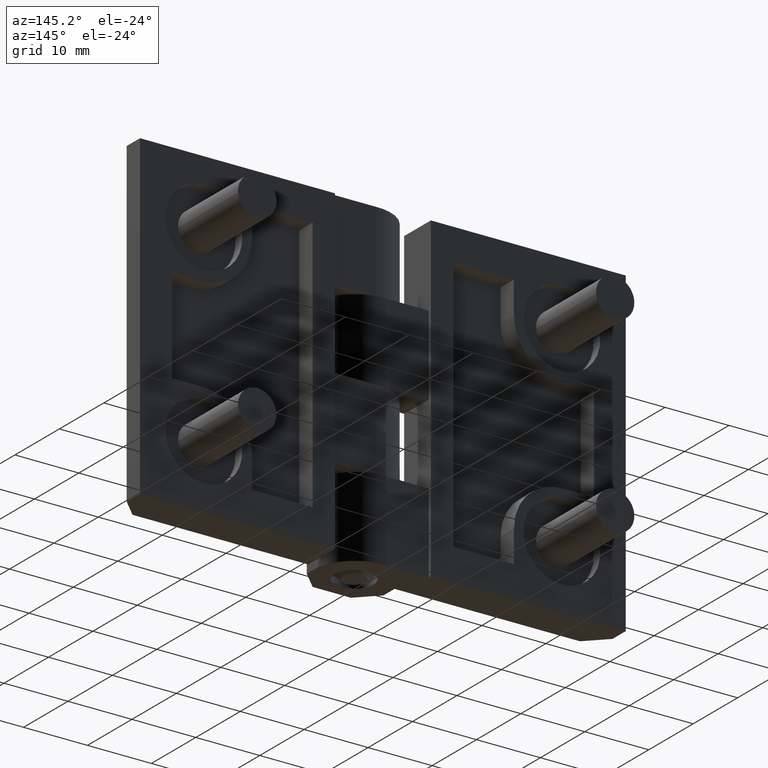
[diagram: clean part render]
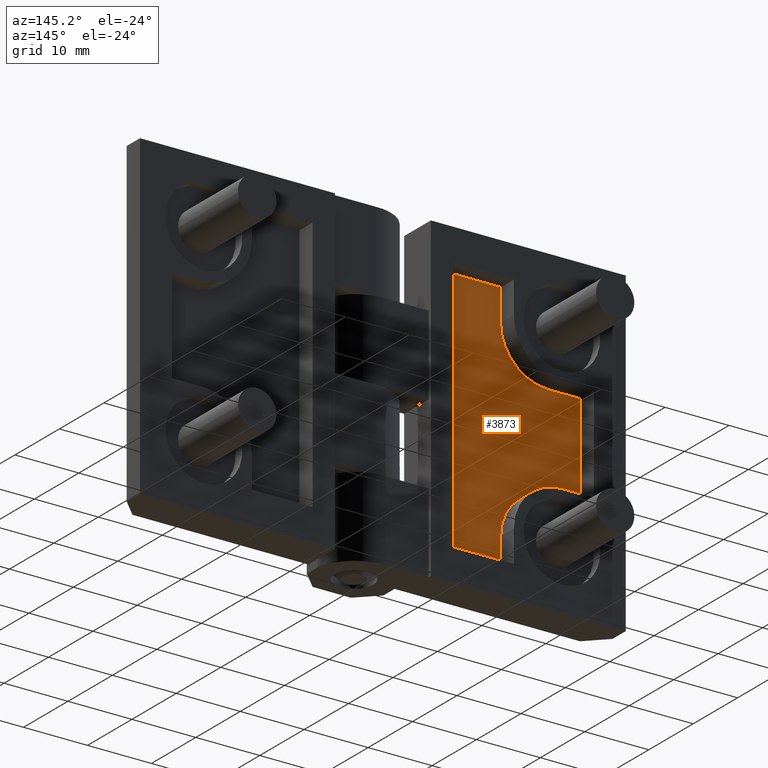
[diagram: same view with one face highlighted and labeled with its STEP entity id]
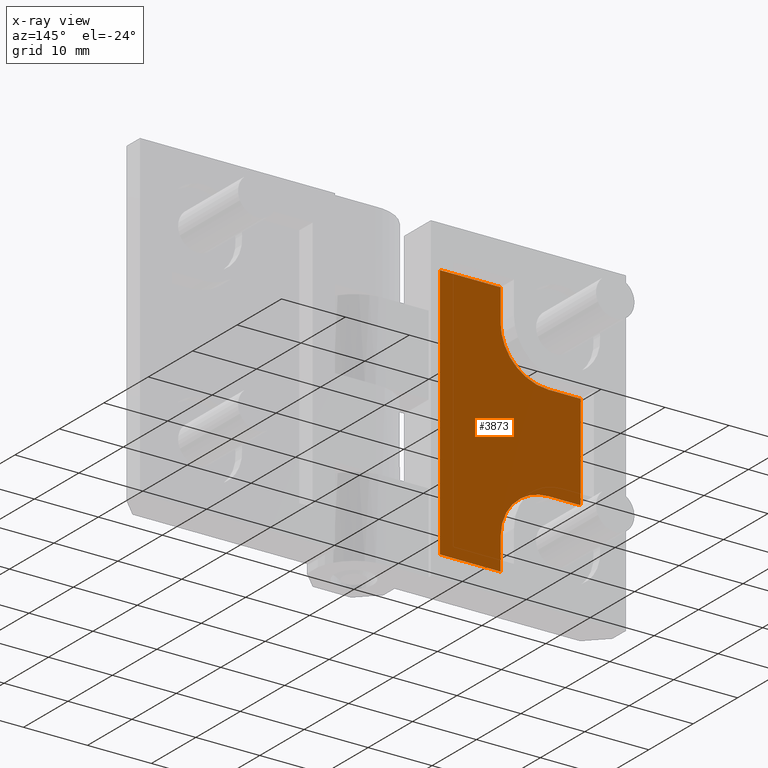
[diagram: x-ray of the same camera — body ghosted, the highlighted face saturated]
A machine part, auxiliary view. The second image highlights one B-rep face of the part: STEP entity #3873.
The next image is the same camera in x-ray: the body ghosted, the highlighted face saturated — about 0% of this face is hidden behind the body in this view.
In plain terms, the highlighted face is a freeform B-spline surface patch.
Its self-contained STEP definition (entity closure, byte-faithful):
#3780=CARTESIAN_POINT('',(-34.098899957359727,3.500000000000000,46.997999922472239));
#3781=CARTESIAN_POINT('',(-9.901099452554286,3.500000000000000,46.997999922472239));
#3782=CARTESIAN_POINT('',(-34.098899957359727,3.500000000000000,3.001999004644155));
#3783=CARTESIAN_POINT('',(-9.901099452554286,3.500000000000000,3.001999004644155));
#3784=B_SPLINE_SURFACE_WITH_KNOTS('',1,1,((#3780,#3782),(#3781,#3783)),.UNSPECIFIED.,.F.,.F.,.U.,(2,2),(2,2),(0.0,24.197800504805439),(0.0,43.996000917828077),.UNSPECIFIED.);
#3785=CARTESIAN_POINT('',(-20.500000000000000,3.500000000000060,10.000000000059980));
#3786=VERTEX_POINT('',#3785);
#3787=CARTESIAN_POINT('',(-28.0,3.500000000000060,17.500000000059998));
#3788=VERTEX_POINT('',#3787);
#3789=CARTESIAN_POINT('',(-20.500000000000000,3.500000000000060,10.000000000059980));
#3790=CARTESIAN_POINT('',(-20.499999999999996,3.500000000000060,17.500000000059977));
#3791=CARTESIAN_POINT('',(-28.0,3.500000000000060,17.500000000059980));
#3799=(BOUNDED_CURVE()B_SPLINE_CURVE(2,(#3789,#3790,#3791),.UNSPECIFIED.,.F.,.U.)CURVE()GEOMETRIC_REPRESENTATION_ITEM()QUASI_UNIFORM_CURVE()RATIONAL_B_SPLINE_CURVE((1.0,0.707106781186547,1.0))REPRESENTATION_ITEM(''));
#3800=EDGE_CURVE('',#3786,#3788,#3799,.T.);
#3801=ORIENTED_EDGE('',*,*,#3800,.T.);
#3802=CARTESIAN_POINT('',(-33.0,3.500000000000060,17.500000000059998));
#3803=VERTEX_POINT('',#3802);
#3804=CARTESIAN_POINT('',(-33.0,3.500000000000060,17.500000000059998));
#3805=CARTESIAN_POINT('',(-28.0,3.500000000000060,17.500000000059998));
#3806=QUASI_UNIFORM_CURVE('',1,(#3804,#3805),.UNSPECIFIED.,.F.,.U.);
#3807=EDGE_CURVE('',#3803,#3788,#3806,.T.);
#3808=ORIENTED_EDGE('',*,*,#3807,.F.);
#3809=CARTESIAN_POINT('',(-33.0,3.500000000000060,32.499999999940002));
#3810=VERTEX_POINT('',#3809);
#3811=CARTESIAN_POINT('',(-33.0,3.500000000000060,32.499999999940002));
#3812=CARTESIAN_POINT('',(-33.0,3.500000000000060,17.500000000059998));
#3813=QUASI_UNIFORM_CURVE('',1,(#3811,#3812),.UNSPECIFIED.,.F.,.U.);
#3814=EDGE_CURVE('',#3810,#3803,#3813,.T.);
#3815=ORIENTED_EDGE('',*,*,#3814,.F.);
#3816=CARTESIAN_POINT('',(-28.0,3.500000000000060,32.499999999940002));
#3817=VERTEX_POINT('',#3816);
#3818=CARTESIAN_POINT('',(-28.0,3.500000000000060,32.499999999940002));
#3819=CARTESIAN_POINT('',(-33.0,3.500000000000060,32.499999999940002));
#3820=QUASI_UNIFORM_CURVE('',1,(#3818,#3819),.UNSPECIFIED.,.F.,.U.);
#3821=EDGE_CURVE('',#3817,#3810,#3820,.T.);
#3822=ORIENTED_EDGE('',*,*,#3821,.F.);
#3823=CARTESIAN_POINT('',(-20.500000000000000,3.500000000000060,39.999999999940002));
#3824=VERTEX_POINT('',#3823);
#3825=CARTESIAN_POINT('',(-28.0,3.500000000000060,32.499999999940002));
#3826=CARTESIAN_POINT('',(-20.499999999999996,3.500000000000060,32.499999999940002));
#3827=CARTESIAN_POINT('',(-20.500000000000000,3.500000000000060,39.999999999940002));
#3835=(BOUNDED_CURVE()B_SPLINE_CURVE(2,(#3825,#3826,#3827),.UNSPECIFIED.,.F.,.U.)CURVE()GEOMETRIC_REPRESENTATION_ITEM()QUASI_UNIFORM_CURVE()RATIONAL_B_SPLINE_CURVE((1.0,0.707106781186547,1.0))REPRESENTATION_ITEM(''));
#3836=EDGE_CURVE('',#3817,#3824,#3835,.T.);
#3837=ORIENTED_EDGE('',*,*,#3836,.T.);
#3838=CARTESIAN_POINT('',(-20.500000000000000,3.500000000000060,45.0));
#3839=VERTEX_POINT('',#3838);
#3840=CARTESIAN_POINT('',(-20.500000000000000,3.500000000000060,45.0));
#3841=CARTESIAN_POINT('',(-20.500000000000000,3.500000000000060,39.999999999940002));
#3842=QUASI_UNIFORM_CURVE('',1,(#3840,#3841),.UNSPECIFIED.,.F.,.U.);
#3843=EDGE_CURVE('',#3839,#3824,#3842,.T.);
#3844=ORIENTED_EDGE('',*,*,#3843,.F.);
#3845=CARTESIAN_POINT('',(-11.0,3.500000000000060,45.0));
#3846=VERTEX_POINT('',#3845);
#3847=CARTESIAN_POINT('',(-11.0,3.500000000000060,45.0));
#3848=CARTESIAN_POINT('',(-20.500000000000000,3.500000000000060,45.0));
#3849=QUASI_UNIFORM_CURVE('',1,(#3847,#3848),.UNSPECIFIED.,.F.,.U.);
#3850=EDGE_CURVE('',#3846,#3839,#3849,.T.);
#3851=ORIENTED_EDGE('',*,*,#3850,.F.);
#3852=CARTESIAN_POINT('',(-11.0,3.500000000000060,5.0));
#3853=VERTEX_POINT('',#3852);
#3854=CARTESIAN_POINT('',(-11.0,3.500000000000060,5.0));
#3855=CARTESIAN_POINT('',(-11.0,3.500000000000060,45.0));
#3856=QUASI_UNIFORM_CURVE('',1,(#3854,#3855),.UNSPECIFIED.,.F.,.U.);
#3857=EDGE_CURVE('',#3853,#3846,#3856,.T.);
#3858=ORIENTED_EDGE('',*,*,#3857,.F.);
#3859=CARTESIAN_POINT('',(-20.500000000000000,3.500000000000060,5.0));
#3860=VERTEX_POINT('',#3859);
#3861=CARTESIAN_POINT('',(-20.500000000000000,3.500000000000060,5.0));
#3862=CARTESIAN_POINT('',(-11.0,3.500000000000060,5.0));
#3863=QUASI_UNIFORM_CURVE('',1,(#3861,#3862),.UNSPECIFIED.,.F.,.U.);
#3864=EDGE_CURVE('',#3860,#3853,#3863,.T.);
#3865=ORIENTED_EDGE('',*,*,#3864,.F.);
#3866=CARTESIAN_POINT('',(-20.500000000000000,3.500000000000060,10.000000000059980));
#3867=CARTESIAN_POINT('',(-20.500000000000000,3.500000000000060,5.0));
#3868=QUASI_UNIFORM_CURVE('',1,(#3866,#3867),.UNSPECIFIED.,.F.,.U.);
#3869=EDGE_CURVE('',#3786,#3860,#3868,.T.);
#3870=ORIENTED_EDGE('',*,*,#3869,.F.);
#3871=EDGE_LOOP('',(#3801,#3808,#3815,#3822,#3837,#3844,#3851,#3858,#3865,#3870));
#3872=FACE_OUTER_BOUND('',#3871,.T.);
#3873=ADVANCED_FACE('',(#3872),#3784,.T.);